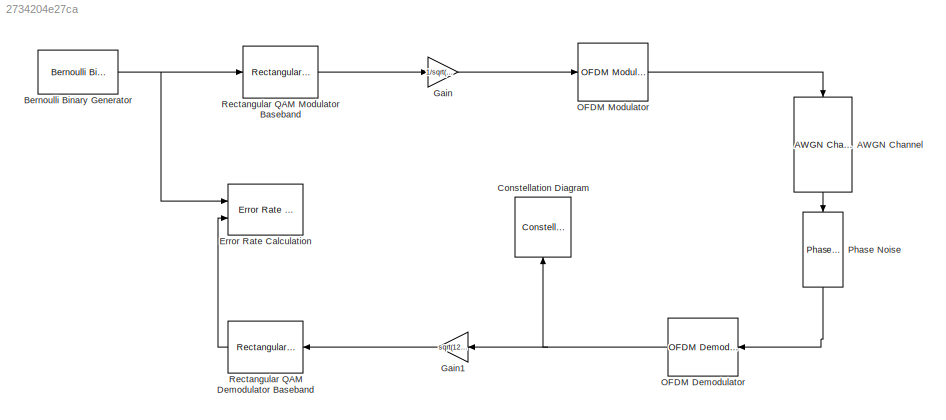
MODEL slx_2734204e27ca
KIND model
CONFIG AbsTol = auto
CONFIG EnableMultiTasking = off
CONFIG FixedStep = auto
CONFIG MaxStep = auto
CONFIG MinStep = auto
CONFIG RelTol = 1e-3
CONFIG SampleTimeConstraint = Unconstrained
CONFIG SolverName = VariableStepAuto
CONFIG StartTime = 0.0
CONFIG StopTime = 10.0
BLOCK [Reference] AWGN Channel  REF=commchan3/AWGN
Channel
  NameLocation = left
  Ports = [1, 1]
  SourceBlock = commchan3/AWGN\nChannel
  SourceProductBaseCode = CM
  SourceType = AWGN Channel
  UserDataPersistent = on
BLOCK [Reference] Bernoulli Binary Generator  REF=commrandsrc3/Bernoulli Binary
Generator
  Ports = [0, 1]
  SourceBlock = commrandsrc3/Bernoulli Binary\nGenerator
  SourceProductBaseCode = CM
  SourceType = Bernoulli Binary Generator
BLOCK [ConstellationDiagram] Constellation Diagram
  NameLocation = right
  Ports = [1]
  ScopeSpecificationString = comm.scopes.ConstellationDiagramBlockCfg('CurrentConfiguration', extmgr.ConfigurationSet(extmgr.Configuration('Core','General UI',true),extmgr.Configuration('Core','Source UI',true),extmgr.Configuration('Sources','WiredSimulink',true),extmgr.Configuration('Visuals','Constellation',true,'LineProperties',struct('DisplayName','','Color',[1 1 0.0666666666666667],'LineStyle','none','LineWidth',0.5,'Mar...<+698ch>
BLOCK [Reference] Error Rate Calculation  REF=commsink2/Error Rate
Calculation
  Ports = [2]
  SourceBlock = commsink2/Error Rate\nCalculation
  SourceProductBaseCode = CM
  SourceType = Error Rate Calculation
BLOCK [Gain] Gain
  Gain = 1/sqrt(128)
BLOCK [Gain] Gain1
  Gain = sqrt(128)
BLOCK [Reference] OFDM Demodulator  REF=commofdm/OFDM Demodulator
  Ports = [1, 1]
  SourceBlock = commofdm/OFDM Demodulator
  SourceProductBaseCode = CM
  SourceType = OFDM Demodulator
  StatePerturbationForJacobian = 1.0e-05
BLOCK [Reference] OFDM Modulator  REF=commofdm/OFDM Modulator
  Ports = [1, 1]
  SourceBlock = commofdm/OFDM Modulator
  SourceProductBaseCode = CM
  SourceType = OFDM Modulator
  StatePerturbationForJacobian = 1.0e-05
BLOCK [Reference] Phase Noise  REF=impairlib/Phase
Noise
  NameLocation = left
  Ports = [1, 1]
  SourceBlock = impairlib/Phase\nNoise
  SourceProductBaseCode = CM,AM,SX
  SourceType = Phase Noise
BLOCK [Reference] Rectangular QAM Demodulator Baseband  REF=commdigbbndam3/Rectangular QAM
Demodulator
Baseband
  NameLocation = top
  Ports = [1, 1]
  SourceBlock = commdigbbndam3/Rectangular QAM\nDemodulator\nBaseband
  SourceProductBaseCode = CM
  SourceType = Rectangular QAM Demodulator Baseband
BLOCK [Reference] Rectangular QAM Modulator Baseband  REF=commdigbbndam3/Rectangular QAM
Modulator
Baseband
  Ports = [1, 1]
  SourceBlock = commdigbbndam3/Rectangular QAM\nModulator\nBaseband
  SourceProductBaseCode = CM
  SourceType = Rectangular QAM Modulator Baseband
LINE AWGN Channel:1 -> Phase Noise:1
NET Bernoulli Binary Generator:1 -> Error Rate Calculation:1, Rectangular QAM Modulator Baseband:1
LINE Gain1:1 -> Rectangular QAM Demodulator Baseband:1
LINE Gain:1 -> OFDM Modulator:1
NET OFDM Demodulator:1 -> Constellation Diagram:1, Gain1:1
LINE OFDM Modulator:1 -> AWGN Channel:1
LINE Phase Noise:1 -> OFDM Demodulator:1
LINE Rectangular QAM Demodulator Baseband:1 -> Error Rate Calculation:2
LINE Rectangular QAM Modulator Baseband:1 -> Gain:1
note: NET lines group one-source signal fan-out (src -> all destinations, sorted); 1:1 wires keep LINE
